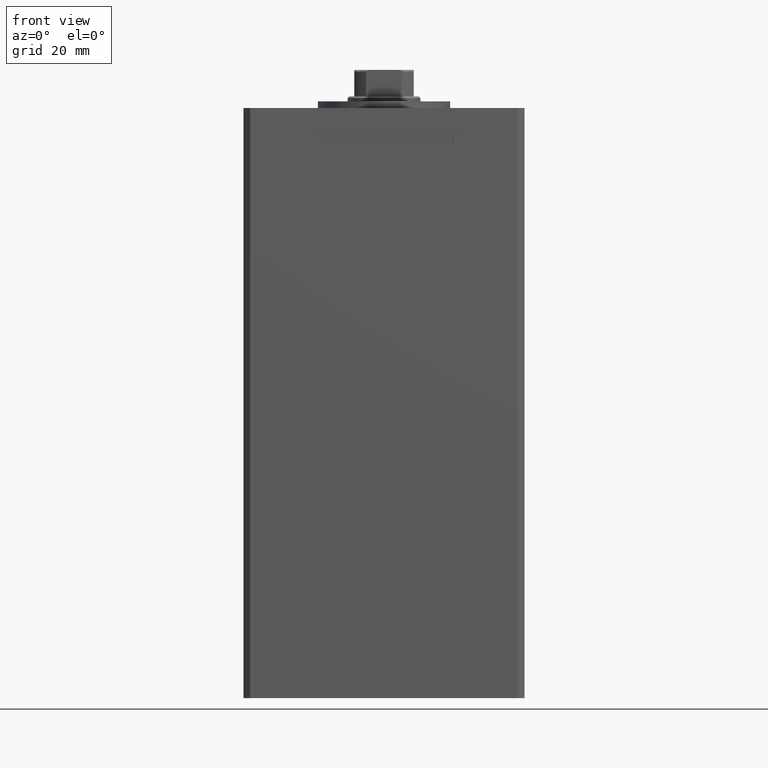
[diagram: clean part render]
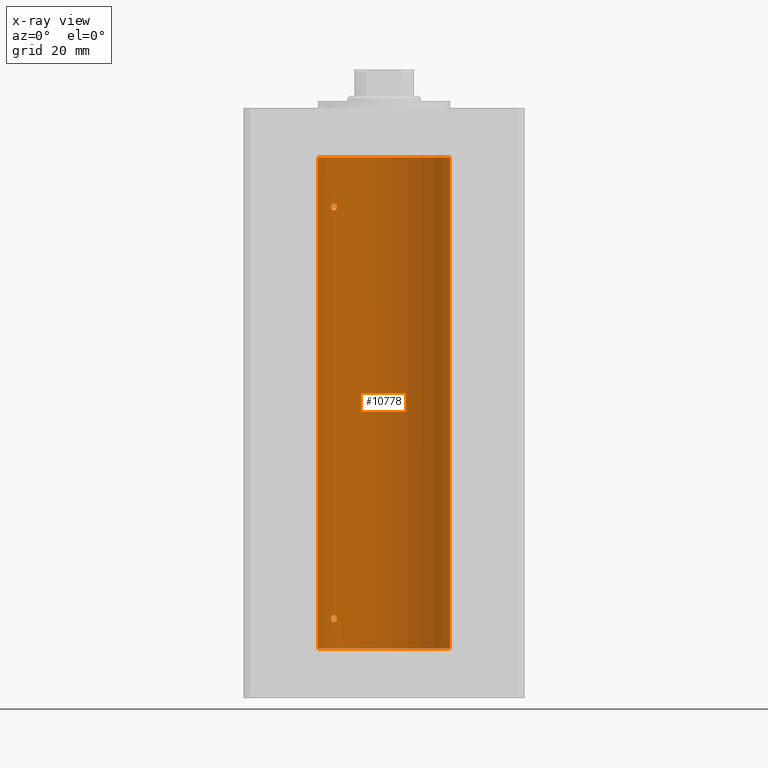
[diagram: x-ray — body ghosted, one internal face saturated and labeled with its STEP entity id]
A machine part, front view, then the same camera in x-ray: the body is ghosted and one INTERNAL B-rep face — a face not visible from any outside direction — is saturated and labeled: STEP entity #10778.
In plain terms, the highlighted cylindrical surface (partial cylindrical patch) has radius 20 mm, axis along (-0, -0, -1).
Its self-contained STEP definition (entity closure, byte-faithful):
#87 = EDGE_CURVE ( 'NONE', #21151, #125, #50800, .T. ) ;
#125 = VERTEX_POINT ( 'NONE', #23002 ) ;
#341 = CARTESIAN_POINT ( 'NONE',  ( -14.51590294503182932, 13.75881262167379404, 132.8367812074223764 ) ) ;
#350 = CARTESIAN_POINT ( 'NONE',  ( 0.000000000000000000, 0.000000000000000000, 148.5000000000000000 ) ) ;
#482 = DIRECTION ( 'NONE',  ( -0.000000000000000000, -0.000000000000000000, -1.000000000000000000 ) ) ;
#596 = CARTESIAN_POINT ( 'NONE',  ( -15.57359523075762908, 12.55100654799543847, 132.5686142754107379 ) ) ;
#605 = DIRECTION ( 'NONE',  ( -1.000000000000000000, 0.000000000000000000, 0.000000000000000000 ) ) ;
#648 = CARTESIAN_POINT ( 'NONE',  ( -14.31871019372461795, 13.96358505023715679, 8.697478539577890189 ) ) ;
#867 = CARTESIAN_POINT ( 'NONE',  ( -15.80909732170550441, 12.25106527276996182, 132.8244517809013701 ) ) ;
#918 = CARTESIAN_POINT ( 'NONE',  ( -15.99999999999999645, 12.00000000000000533, 9.000000000000001776 ) ) ;
#1406 = CARTESIAN_POINT ( 'NONE',  ( -15.37869370082498044, 12.78737709343839057, 9.984378433483314552 ) ) ;
#1870 = EDGE_LOOP ( 'NONE', ( #34609, #31064, #3931, #33520 ) ) ;
#1933 = CARTESIAN_POINT ( 'NONE',  ( -14.40763032799402055, 13.87162499441319063, 133.9952174752553162 ) ) ;
#2189 = CARTESIAN_POINT ( 'NONE',  ( -15.80861854366320074, 12.25167421322532668, 134.1760529919017131 ) ) ;
#2718 = CARTESIAN_POINT ( 'NONE',  ( -15.97258576326346713, 12.03672672663914689, 9.305137409213726229 ) ) ;
#3931 = ORIENTED_EDGE ( 'NONE', *, *, #40734, .T. ) ;
#4695 = CARTESIAN_POINT ( 'NONE',  ( 0.000000000000000000, 0.000000000000000000, 148.5000000000000000 ) ) ;
#4811 = CARTESIAN_POINT ( 'NONE',  ( -15.87710824431565548, 12.16238752415382507, 132.9349218073222119 ) ) ;
#4959 = DIRECTION ( 'NONE',  ( 1.000000000000000000, 0.000000000000000000, 0.000000000000000000 ) ) ;
#5129 = CARTESIAN_POINT ( 'NONE',  ( -15.97265980134107721, 12.03662641108511977, 8.695337314863895273 ) ) ;
#5611 = CARTESIAN_POINT ( 'NONE',  ( -15.56338254739985594, 12.56194079578775202, 9.906815049669283724 ) ) ;
#5701 = LINE ( 'NONE', #42361, #15875 ) ;
#5875 = CARTESIAN_POINT ( 'NONE',  ( -14.44276720520014123, 13.83508275448403957, 9.554048662650277635 ) ) ;
#5882 = CARTESIAN_POINT ( 'NONE',  ( -14.69171503997127104, 13.57092520311232420, 134.3305470397792760 ) ) ;
#8427 = VERTEX_POINT ( 'NONE', #41015 ) ;
#8515 = CARTESIAN_POINT ( 'NONE',  ( -14.28285685708575770, 13.99999999999999822, 133.3474210506593636 ) ) ;
#9035 = CARTESIAN_POINT ( 'NONE',  ( -15.37869471769012542, 12.79018928545120204, 132.4951659137118156 ) ) ;
#9061 = CARTESIAN_POINT ( 'NONE',  ( -14.31936354392034616, 13.96291496472316496, 9.304428457027322352 ) ) ;
#9317 = CARTESIAN_POINT ( 'NONE',  ( -14.98188199575990254, 13.25008090651449244, 9.975236402857756701 ) ) ;
#9599 = CARTESIAN_POINT ( 'NONE',  ( -14.51590294503183820, 13.75881262167379049, 8.336781207422363948 ) ) ;
#9855 = CARTESIAN_POINT ( 'NONE',  ( -15.80909732170550441, 12.25106527276995649, 8.324451780901405584 ) ) ;
#10102 = CARTESIAN_POINT ( 'NONE',  ( -14.56006338825495483, 13.71162570780885481, 134.2053579553633540 ) ) ;
#10560 = ORIENTED_EDGE ( 'NONE', *, *, #16913, .F. ) ;
#10778 = ADVANCED_FACE ( 'NONE', ( #24869, #31745, #40701 ), #36227, .F. ) ;
#11400 = ORIENTED_EDGE ( 'NONE', *, *, #29831, .F. ) ;
#13282 = AXIS2_PLACEMENT_3D ( 'NONE', #4695, #40050, #4959 ) ;
#13295 = CARTESIAN_POINT ( 'NONE',  ( -14.28285685708537756, 14.00000000000032863, 8.999999999999852562 ) ) ;
#13537 = CARTESIAN_POINT ( 'NONE',  ( -15.08229700616151625, 13.13572892147764826, 134.4974307527148198 ) ) ;
#13554 = CARTESIAN_POINT ( 'NONE',  ( -16.00000000000000355, 12.00000000000000711, 8.845692188641406162 ) ) ;
#14190 = VERTEX_POINT ( 'NONE', #29190 ) ;
#14451 = B_SPLINE_CURVE_WITH_KNOTS ( 'NONE', 3,
 ( #28589, #34103, #42539, #1933, #45988, #37793, #10102, #5882, #30664, #21962, #13537, #49937, #25664, #21696, #34623, #2189, #30140, #46252, #46768, #18255 ),
 .UNSPECIFIED., .F., .F.,
 ( 4, 2, 2, 2, 2, 2, 2, 2, 2, 4 ),
 ( 0.003644921977557289642, 0.004100339128177169119, 0.004328047703487108641, 0.004555756278797049030, 0.005011173429416889910, 0.005466590580036730790, 0.005922007730656571670, 0.006377424881276412549, 0.006832842031896252562, 0.007288259182516093442 ),
 .UNSPECIFIED. ) ;
#14968 = VECTOR ( 'NONE', #482, 1000.000000000000000 ) ;
#15875 = VECTOR ( 'NONE', #21776, 1000.000000000000000 ) ;
#16913 = EDGE_CURVE ( 'NONE', #125, #21151, #44715, .T. ) ;
#17219 = CARTESIAN_POINT ( 'NONE',  ( -14.40763032799400989, 13.87162499441319952, 9.495217475255243400 ) ) ;
#17496 = CARTESIAN_POINT ( 'NONE',  ( -15.87710824431566614, 12.16238752415382152, 8.434921807322277587 ) ) ;
#18181 = DIRECTION ( 'NONE',  ( 1.000000000000000000, 0.000000000000000000, 0.000000000000000000 ) ) ;
#18255 = CARTESIAN_POINT ( 'NONE',  ( -15.99999999999999645, 12.00000000000000711, 133.5000000000000000 ) ) ;
#18512 = CARTESIAN_POINT ( 'NONE',  ( -16.00000000000000355, 12.00000000000000888, 9.154240719993492092 ) ) ;
#18845 = CIRCLE ( 'NONE', #50866, 20.00000000000000000 ) ;
#20094 = CARTESIAN_POINT ( 'NONE',  ( -20.00000000000000000, 0.000000000000000000, 0.000000000000000000 ) ) ;
#20379 = CARTESIAN_POINT ( 'NONE',  ( -15.08054978948643488, 13.13774395934156658, 132.5027765441529937 ) ) ;
#20413 = EDGE_LOOP ( 'NONE', ( #11400, #45405 ) ) ;
#20638 = CARTESIAN_POINT ( 'NONE',  ( -15.97265980134107721, 12.03662641108512332, 133.1953373148639344 ) ) ;
#20757 = CARTESIAN_POINT ( 'NONE',  ( 20.00000000000000000, 2.449293598294706513E-15, 0.000000000000000000 ) ) ;
#20896 = CARTESIAN_POINT ( 'NONE',  ( -14.43642497935765334, 13.84184969151371547, 132.9420533359229069 ) ) ;
#21100 = VERTEX_POINT ( 'NONE', #26498 ) ;
#21151 = VERTEX_POINT ( 'NONE', #38898 ) ;
#21209 = CARTESIAN_POINT ( 'NONE',  ( -15.37869471769012897, 12.79018928545119671, 7.995165913711804073 ) ) ;
#21375 = CARTESIAN_POINT ( 'NONE',  ( 0.000000000000000000, 0.000000000000000000, 0.000000000000000000 ) ) ;
#21438 = CARTESIAN_POINT ( 'NONE',  ( -15.08229700616151270, 13.13572892147766247, 9.997430752714780766 ) ) ;
#21696 = CARTESIAN_POINT ( 'NONE',  ( -15.56338254739985949, 12.56194079578775025, 134.4068150496692908 ) ) ;
#21776 = DIRECTION ( 'NONE',  ( -0.000000000000000000, -0.000000000000000000, -1.000000000000000000 ) ) ;
#21952 = CARTESIAN_POINT ( 'NONE',  ( -14.51882058315760027, 13.75524947942078313, 9.658734659218600527 ) ) ;
#21962 = CARTESIAN_POINT ( 'NONE',  ( -14.98188199575990964, 13.25008090651448178, 134.4752364028577460 ) ) ;
#23002 = CARTESIAN_POINT ( 'NONE',  ( -15.99999999999999645, 12.00000000000000533, 9.000000000000001776 ) ) ;
#23252 = CARTESIAN_POINT ( 'NONE',  ( -15.87665094074984928, 12.16298652314402950, 9.566050066014014419 ) ) ;
#23257 = B_SPLINE_CURVE_WITH_KNOTS ( 'NONE', 3,
 ( #45175, #40435, #20638, #4811, #867, #596, #9035, #20379, #36728, #32769, #37256, #341, #20896, #36994, #8515, #36474 ),
 .UNSPECIFIED., .F., .F.,
 ( 4, 2, 2, 2, 2, 2, 2, 4 ),
 ( 0.000000000000000000, 0.0004556152471946448338, 0.0009112304943892896676, 0.001822460988778623354, 0.002278076235973289926, 0.002733691483167956498, 0.003189306730362623070, 0.003644921977557289642 ),
 .UNSPECIFIED. ) ;
#24869 = FACE_OUTER_BOUND ( 'NONE', #1870, .T. ) ;
#25141 = CARTESIAN_POINT ( 'NONE',  ( -14.56006338825494772, 13.71162570780885126, 9.705357955363313138 ) ) ;
#25266 = LINE ( 'NONE', #29219, #14968 ) ;
#25606 = VERTEX_POINT ( 'NONE', #20094 ) ;
#25657 = CARTESIAN_POINT ( 'NONE',  ( -14.28285685708573460, 14.00000000000003020, 9.152512609665841126 ) ) ;
#25664 = CARTESIAN_POINT ( 'NONE',  ( -15.37869370082499110, 12.78737709343838524, 134.4843784334833572 ) ) ;
#25911 = CARTESIAN_POINT ( 'NONE',  ( -14.28285685708537756, 14.00000000000032863, 8.999999999999852562 ) ) ;
#26498 = CARTESIAN_POINT ( 'NONE',  ( -14.28285685708538111, 14.00000000000032685, 133.4999999999998579 ) ) ;
#27679 = EDGE_CURVE ( 'NONE', #45216, #25606, #18845, .T. ) ;
#28564 = DIRECTION ( 'NONE',  ( -0.000000000000000000, -0.000000000000000000, -1.000000000000000000 ) ) ;
#28581 = AXIS2_PLACEMENT_3D ( 'NONE', #350, #28564, #605 ) ;
#28589 = CARTESIAN_POINT ( 'NONE',  ( -14.28285685708538111, 14.00000000000032685, 133.4999999999998579 ) ) ;
#29190 = CARTESIAN_POINT ( 'NONE',  ( -15.99999999999999645, 12.00000000000000711, 133.5000000000000000 ) ) ;
#29219 = CARTESIAN_POINT ( 'NONE',  ( -20.00000000000000000, 0.000000000000000000, 148.5000000000000000 ) ) ;
#29354 = CARTESIAN_POINT ( 'NONE',  ( -14.78630942130979342, 13.46798002156744545, 9.891415279583977593 ) ) ;
#29636 = CARTESIAN_POINT ( 'NONE',  ( -14.43642497935765512, 13.84184969151371547, 8.442053335922926394 ) ) ;
#29831 = EDGE_CURVE ( 'NONE', #14190, #21100, #23257, .T. ) ;
#30140 = CARTESIAN_POINT ( 'NONE',  ( -15.87665094074984573, 12.16298652314402595, 134.0660500660140144 ) ) ;
#30664 = CARTESIAN_POINT ( 'NONE',  ( -14.78630942130979697, 13.46798002156743479, 134.3914152795840096 ) ) ;
#31064 = ORIENTED_EDGE ( 'NONE', *, *, #39869, .T. ) ;
#31450 = CARTESIAN_POINT ( 'NONE',  ( -15.99999999999999645, 12.00000000000000533, 9.000000000000001776 ) ) ;
#31745 = FACE_BOUND ( 'NONE', #35689, .T. ) ;
#31855 = CARTESIAN_POINT ( 'NONE',  ( 20.00000000000000000, 2.449293598294706513E-15, 148.5000000000000000 ) ) ;
#32769 = CARTESIAN_POINT ( 'NONE',  ( -14.78531327857342959, 13.46907986586309924, 132.6090990069115207 ) ) ;
#32821 = CARTESIAN_POINT ( 'NONE',  ( -15.57359523075763086, 12.55100654799543136, 8.068614275410753933 ) ) ;
#33337 = CARTESIAN_POINT ( 'NONE',  ( -15.08054978948644198, 13.13774395934156836, 8.002776544152998994 ) ) ;
#33520 = ORIENTED_EDGE ( 'NONE', *, *, #27679, .F. ) ;
#33571 = CARTESIAN_POINT ( 'NONE',  ( -15.65267653428113093, 12.45028749062556450, 9.845491151963429388 ) ) ;
#34097 = CARTESIAN_POINT ( 'NONE',  ( -14.69171503997126571, 13.57092520311232420, 9.830547039779306218 ) ) ;
#34103 = CARTESIAN_POINT ( 'NONE',  ( -14.28285685708573105, 14.00000000000002665, 133.6525126096658767 ) ) ;
#34609 = ORIENTED_EDGE ( 'NONE', *, *, #48043, .F. ) ;
#34623 = CARTESIAN_POINT ( 'NONE',  ( -15.65267653428112027, 12.45028749062556983, 134.3454911519633868 ) ) ;
#35320 = ORIENTED_EDGE ( 'NONE', *, *, #87, .F. ) ;
#35689 = EDGE_LOOP ( 'NONE', ( #10560, #35320 ) ) ;
#36227 = CYLINDRICAL_SURFACE ( 'NONE', #28581, 20.00000000000000000 ) ;
#36474 = CARTESIAN_POINT ( 'NONE',  ( -14.28285685708538111, 14.00000000000032685, 133.4999999999998579 ) ) ;
#36728 = CARTESIAN_POINT ( 'NONE',  ( -14.98166541227928761, 13.25033217142396325, 132.5247696149142769 ) ) ;
#36909 = EDGE_CURVE ( 'NONE', #21100, #14190, #14451, .T. ) ;
#36994 = CARTESIAN_POINT ( 'NONE',  ( -14.31871019372461085, 13.96358505023716212, 133.1974785395779008 ) ) ;
#37256 = CARTESIAN_POINT ( 'NONE',  ( -14.69070843596622922, 13.57200975233015505, 132.6702647380768383 ) ) ;
#37526 = CARTESIAN_POINT ( 'NONE',  ( -15.28000793038418870, 12.90520882930645108, 10.00215022853122981 ) ) ;
#37793 = CARTESIAN_POINT ( 'NONE',  ( -14.51882058315760204, 13.75524947942077958, 134.1587346592185952 ) ) ;
#38898 = CARTESIAN_POINT ( 'NONE',  ( -14.28285685708537756, 14.00000000000032863, 8.999999999999852562 ) ) ;
#39347 = CARTESIAN_POINT ( 'NONE',  ( -15.80861854366319719, 12.25167421322532491, 9.676052991901704203 ) ) ;
#39869 = EDGE_CURVE ( 'NONE', #45028, #8427, #43601, .T. ) ;
#40050 = DIRECTION ( 'NONE',  ( -0.000000000000000000, 0.000000000000000000, 1.000000000000000000 ) ) ;
#40435 = CARTESIAN_POINT ( 'NONE',  ( -15.99999999999999289, 12.00000000000000888, 133.3456921886414079 ) ) ;
#40701 = FACE_BOUND ( 'NONE', #20413, .T. ) ;
#40734 = EDGE_CURVE ( 'NONE', #8427, #25606, #25266, .T. ) ;
#41015 = CARTESIAN_POINT ( 'NONE',  ( -20.00000000000000000, 0.000000000000000000, 148.5000000000000000 ) ) ;
#41259 = CARTESIAN_POINT ( 'NONE',  ( -14.98166541227929116, 13.25033217142396325, 8.024769614914273319 ) ) ;
#41687 = DIRECTION ( 'NONE',  ( -0.000000000000000000, 0.000000000000000000, 1.000000000000000000 ) ) ;
#42361 = CARTESIAN_POINT ( 'NONE',  ( 20.00000000000000000, 2.449293598294706513E-15, 148.5000000000000000 ) ) ;
#42539 = CARTESIAN_POINT ( 'NONE',  ( -14.31936354392035149, 13.96291496472315785, 133.8044284570273419 ) ) ;
#43601 = CIRCLE ( 'NONE', #13282, 20.00000000000000000 ) ;
#44715 = B_SPLINE_CURVE_WITH_KNOTS ( 'NONE', 3,
 ( #918, #13554, #5129, #17496, #9855, #32821, #21209, #33337, #41259, #49438, #45225, #9599, #29636, #648, #44973, #13295 ),
 .UNSPECIFIED., .F., .F.,
 ( 4, 2, 2, 2, 2, 2, 2, 4 ),
 ( 1.734723475976807094E-18, 0.0004556152471946670057, 0.0009112304943893322767, 0.001822460988778654796, 0.002278076235973315947, 0.002733691483167977315, 0.003189306730362638249, 0.003644921977557299617 ),
 .UNSPECIFIED. ) ;
#44973 = CARTESIAN_POINT ( 'NONE',  ( -14.28285685708575414, 14.00000000000000000, 8.847421050659345809 ) ) ;
#45028 = VERTEX_POINT ( 'NONE', #31855 ) ;
#45175 = CARTESIAN_POINT ( 'NONE',  ( -15.99999999999999645, 12.00000000000000711, 133.5000000000000000 ) ) ;
#45216 = VERTEX_POINT ( 'NONE', #20757 ) ;
#45225 = CARTESIAN_POINT ( 'NONE',  ( -14.69070843596623099, 13.57200975233014972, 8.170264738076779665 ) ) ;
#45405 = ORIENTED_EDGE ( 'NONE', *, *, #36909, .F. ) ;
#45988 = CARTESIAN_POINT ( 'NONE',  ( -14.44276720520014656, 13.83508275448404312, 134.0540486626502741 ) ) ;
#46252 = CARTESIAN_POINT ( 'NONE',  ( -15.97258576326347068, 12.03672672663914867, 133.8051374092137280 ) ) ;
#46768 = CARTESIAN_POINT ( 'NONE',  ( -15.99999999999999289, 12.00000000000001243, 133.6542407199934814 ) ) ;
#48043 = EDGE_CURVE ( 'NONE', #45028, #45216, #5701, .T. ) ;
#49438 = CARTESIAN_POINT ( 'NONE',  ( -14.78531327857342781, 13.46907986586309569, 8.109099006911453245 ) ) ;
#49937 = CARTESIAN_POINT ( 'NONE',  ( -15.28000793038419758, 12.90520882930644042, 134.5021502285312636 ) ) ;
#50800 = B_SPLINE_CURVE_WITH_KNOTS ( 'NONE', 3,
 ( #25911, #25657, #9061, #17219, #5875, #21952, #25141, #34097, #29354, #9317, #21438, #37526, #1406, #5611, #33571, #39347, #23252, #2718, #18512, #31450 ),
 .UNSPECIFIED., .F., .F.,
 ( 4, 2, 2, 2, 2, 2, 2, 2, 2, 4 ),
 ( 0.003644921977557299617, 0.004100339128177156109, 0.004328047703487083488, 0.004555756278797011734, 0.005011173429416868226, 0.005466590580036723851, 0.005922007730656580343, 0.006377424881276436835, 0.006832842031896293328, 0.007288259182516148953 ),
 .UNSPECIFIED. ) ;
#50866 = AXIS2_PLACEMENT_3D ( 'NONE', #21375, #41687, #18181 ) ;